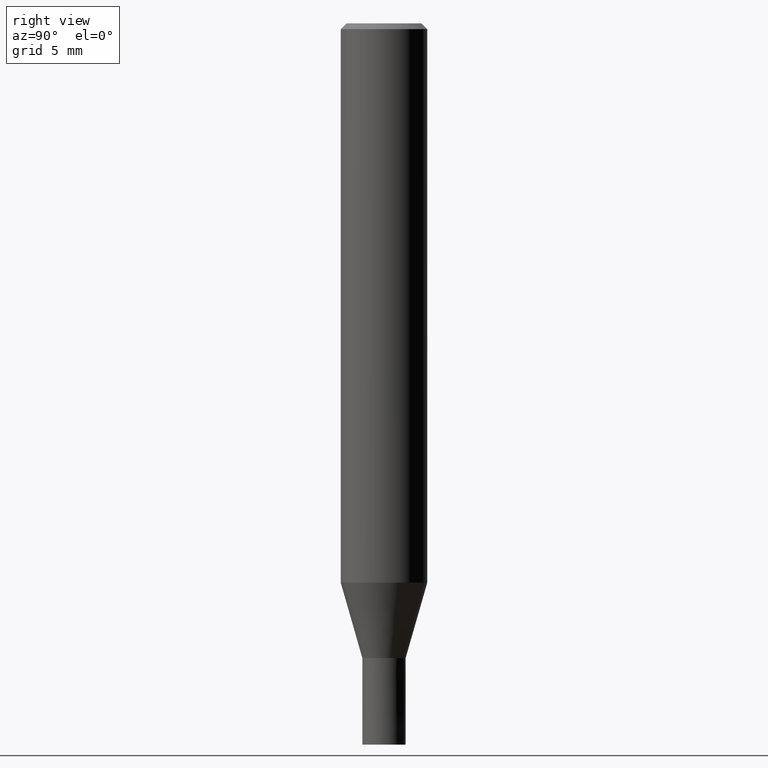
[diagram: clean part render]
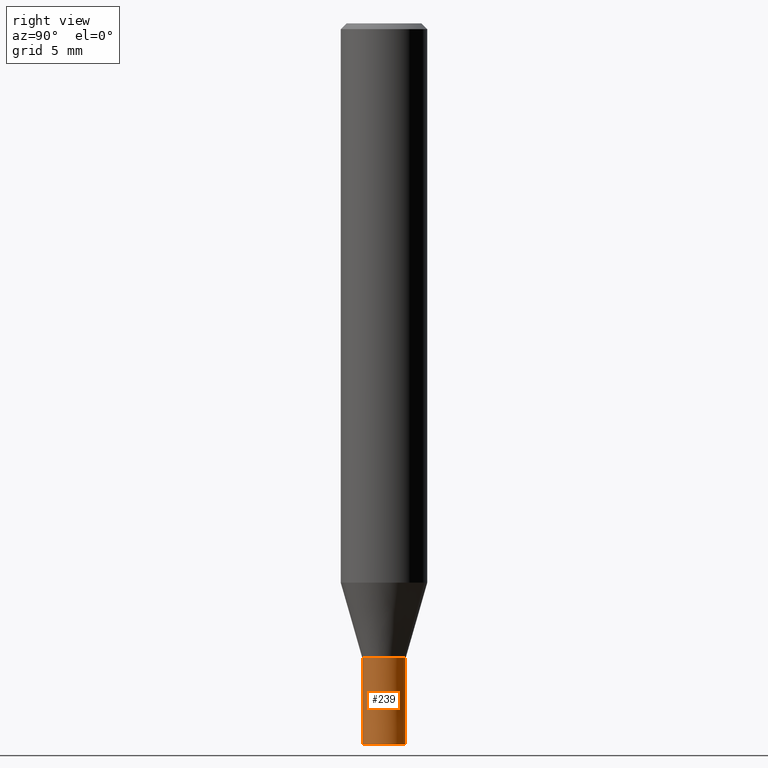
[diagram: same view with one face highlighted and labeled with its STEP entity id]
A machine part, right view. The second image highlights one B-rep face of the part: STEP entity #239.
In plain terms, the highlighted conical surface has half-angle 0.001 deg.
Its self-contained STEP definition (entity closure, byte-faithful):
#137=VERTEX_POINT('',#314);
#145=VERTEX_POINT('',#323);
#155=EDGE_CURVE('',#189,#137,#333,.T.);
#161=EDGE_CURVE('',#145,#197,#340,.T.);
#167=EDGE_CURVE('',#197,#137,#347,.T.);
#189=VERTEX_POINT('',#370);
#191=EDGE_CURVE('',#189,#145,#372,.T.);
#197=VERTEX_POINT('',#378);
#239=ADVANCED_FACE('',(#428),#429,.T.);
#314=CARTESIAN_POINT('',(1.83678707009818E-016,-1.4999,-44.0));
#323=CARTESIAN_POINT('',(0.0,1.5,-50.0));
#333=CIRCLE('',#529,1.4999);
#340=CIRCLE('',#538,1.5);
#347=LINE('',#547,#548);
#370=CARTESIAN_POINT('',(0.0,1.4999,-44.0));
#372=LINE('',#582,#583);
#378=CARTESIAN_POINT('',(1.83690953073357E-016,-1.5,-50.0));
#428=FACE_OUTER_BOUND('',#650,.T.);
#429=CONICAL_SURFACE('',#651,1.49995,1.66666666651216E-005);
#529=AXIS2_PLACEMENT_3D('',#755,#756,#757);
#538=AXIS2_PLACEMENT_3D('',#769,#770,#771);
#547=CARTESIAN_POINT('',(1.83684830041587E-016,-1.49995,-47.0));
#548=VECTOR('',#783,1.0);
#582=CARTESIAN_POINT('',(-1.83684830041587E-016,1.49995,-47.0));
#583=VECTOR('',#801,1.0);
#650=EDGE_LOOP('',(#869,#870,#871,#872));
#651=AXIS2_PLACEMENT_3D('',#873,#874,#875);
#755=CARTESIAN_POINT('',(0.0,0.0,-44.0));
#756=DIRECTION('',(0.0,0.0,-1.0));
#757=DIRECTION('',(0.0,1.0,0.0));
#769=CARTESIAN_POINT('',(0.0,0.0,-50.0));
#770=DIRECTION('',(0.0,0.0,-1.0));
#771=DIRECTION('',(0.0,1.0,0.0));
#783=DIRECTION('',(-2.04101058942026E-021,1.666666666435E-005,0.999999999861111));
#801=DIRECTION('',(-2.04101058942026E-021,1.666666666435E-005,-0.999999999861111));
#869=ORIENTED_EDGE('',*,*,#191,.F.);
#870=ORIENTED_EDGE('',*,*,#155,.T.);
#871=ORIENTED_EDGE('',*,*,#167,.F.);
#872=ORIENTED_EDGE('',*,*,#161,.F.);
#873=CARTESIAN_POINT('',(0.0,0.0,-47.0));
#874=DIRECTION('',(0.0,-0.0,-1.0));
#875=DIRECTION('',(0.0,1.0,0.0));